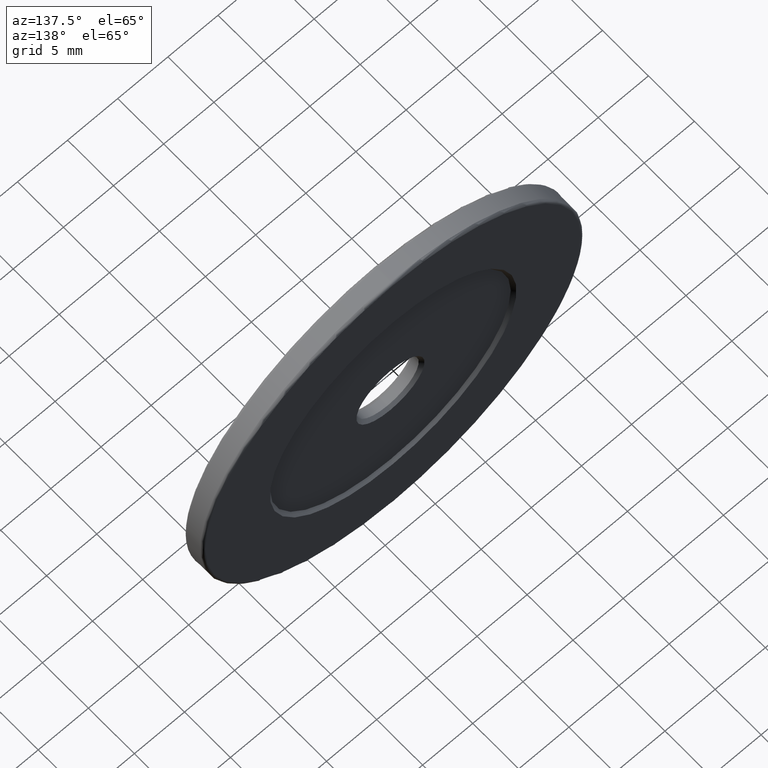
[diagram: clean part render]
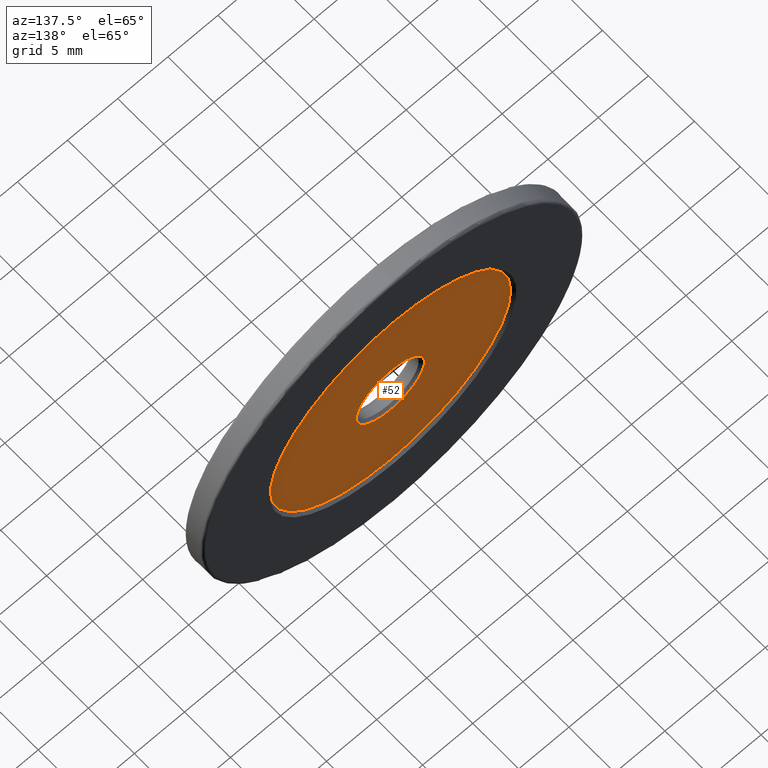
[diagram: same view with one face highlighted and labeled with its STEP entity id]
A machine part, auxiliary view. The second image highlights one B-rep face of the part: STEP entity #52.
In plain terms, the highlighted planar face has unit normal (0, 1, 0).
Its self-contained STEP definition (entity closure, byte-faithful):
#18 = CARTESIAN_POINT ( 'NONE',  ( -7.546808913101048510, -2.193595127302727654, 38.00000000000000000 ) ) ;
#21 = CARTESIAN_POINT ( 'NONE',  ( -7.546808913101048510, -2.193595127302727654, 38.00000000000000000 ) ) ;
#22 = CIRCLE ( 'NONE', #147, 12.00000000000000355 ) ;
#25 = ORIENTED_EDGE ( 'NONE', *, *, #137, .T. ) ;
#33 = AXIS2_PLACEMENT_3D ( 'NONE', #502, #456, #585 ) ;
#45 = EDGE_LOOP ( 'NONE', ( #249, #25 ) ) ;
#52 = ADVANCED_FACE ( 'NONE', ( #354, #117 ), #204, .T. ) ;
#56 = CARTESIAN_POINT ( 'NONE',  ( -7.546808913101048510, -2.193595127302727654, 38.00000000000000000 ) ) ;
#65 = CARTESIAN_POINT ( 'NONE',  ( -7.546808913101048510, -2.193595127302727654, 38.00000000000000000 ) ) ;
#85 = VERTEX_POINT ( 'NONE', #551 ) ;
#117 = FACE_OUTER_BOUND ( 'NONE', #45, .T. ) ;
#119 = EDGE_CURVE ( 'NONE', #85, #476, #225, .T. ) ;
#120 = CIRCLE ( 'NONE', #346, 12.00000000000000355 ) ;
#125 = EDGE_CURVE ( 'NONE', #476, #85, #278, .T. ) ;
#137 = EDGE_CURVE ( 'NONE', #304, #389, #120, .T. ) ;
#143 = DIRECTION ( 'NONE',  ( 0.000000000000000000, 0.000000000000000000, 1.000000000000000000 ) ) ;
#147 = AXIS2_PLACEMENT_3D ( 'NONE', #21, #595, #597 ) ;
#176 = CARTESIAN_POINT ( 'NONE',  ( -7.546808913101048510, -2.193595127302727654, 50.00000000000000000 ) ) ;
#204 = PLANE ( 'NONE',  #33 ) ;
#225 = CIRCLE ( 'NONE', #423, 3.399999999999986144 ) ;
#237 = DIRECTION ( 'NONE',  ( 0.000000000000000000, 0.000000000000000000, 1.000000000000000000 ) ) ;
#249 = ORIENTED_EDGE ( 'NONE', *, *, #319, .T. ) ;
#278 = CIRCLE ( 'NONE', #529, 3.399999999999986144 ) ;
#286 = DIRECTION ( 'NONE',  ( 0.000000000000000000, 0.000000000000000000, 1.000000000000000000 ) ) ;
#304 = VERTEX_POINT ( 'NONE', #553 ) ;
#319 = EDGE_CURVE ( 'NONE', #389, #304, #22, .T. ) ;
#327 = CARTESIAN_POINT ( 'NONE',  ( -7.546808913101048510, -2.193595127302727654, 34.60000000000001563 ) ) ;
#346 = AXIS2_PLACEMENT_3D ( 'NONE', #56, #582, #237 ) ;
#354 = FACE_BOUND ( 'NONE', #548, .T. ) ;
#385 = DIRECTION ( 'NONE',  ( -0.000000000000000000, -1.000000000000000000, -0.000000000000000000 ) ) ;
#389 = VERTEX_POINT ( 'NONE', #176 ) ;
#423 = AXIS2_PLACEMENT_3D ( 'NONE', #65, #536, #143 ) ;
#456 = DIRECTION ( 'NONE',  ( 0.000000000000000000, 1.000000000000000000, 0.000000000000000000 ) ) ;
#476 = VERTEX_POINT ( 'NONE', #327 ) ;
#502 = CARTESIAN_POINT ( 'NONE',  ( -7.546808913101048510, -2.193595127302727654, 38.00000000000000000 ) ) ;
#527 = ORIENTED_EDGE ( 'NONE', *, *, #125, .T. ) ;
#529 = AXIS2_PLACEMENT_3D ( 'NONE', #18, #385, #286 ) ;
#536 = DIRECTION ( 'NONE',  ( -0.000000000000000000, -1.000000000000000000, -0.000000000000000000 ) ) ;
#548 = EDGE_LOOP ( 'NONE', ( #574, #527 ) ) ;
#551 = CARTESIAN_POINT ( 'NONE',  ( -7.546808913101048510, -2.193595127302727654, 41.39999999999998437 ) ) ;
#553 = CARTESIAN_POINT ( 'NONE',  ( -7.546808913101046734, -2.193595127302727654, 25.99999999999999645 ) ) ;
#574 = ORIENTED_EDGE ( 'NONE', *, *, #119, .T. ) ;
#582 = DIRECTION ( 'NONE',  ( 0.000000000000000000, 1.000000000000000000, 0.000000000000000000 ) ) ;
#585 = DIRECTION ( 'NONE',  ( 0.000000000000000000, -0.000000000000000000, 1.000000000000000000 ) ) ;
#595 = DIRECTION ( 'NONE',  ( 0.000000000000000000, 1.000000000000000000, 0.000000000000000000 ) ) ;
#597 = DIRECTION ( 'NONE',  ( 0.000000000000000000, 0.000000000000000000, 1.000000000000000000 ) ) ;